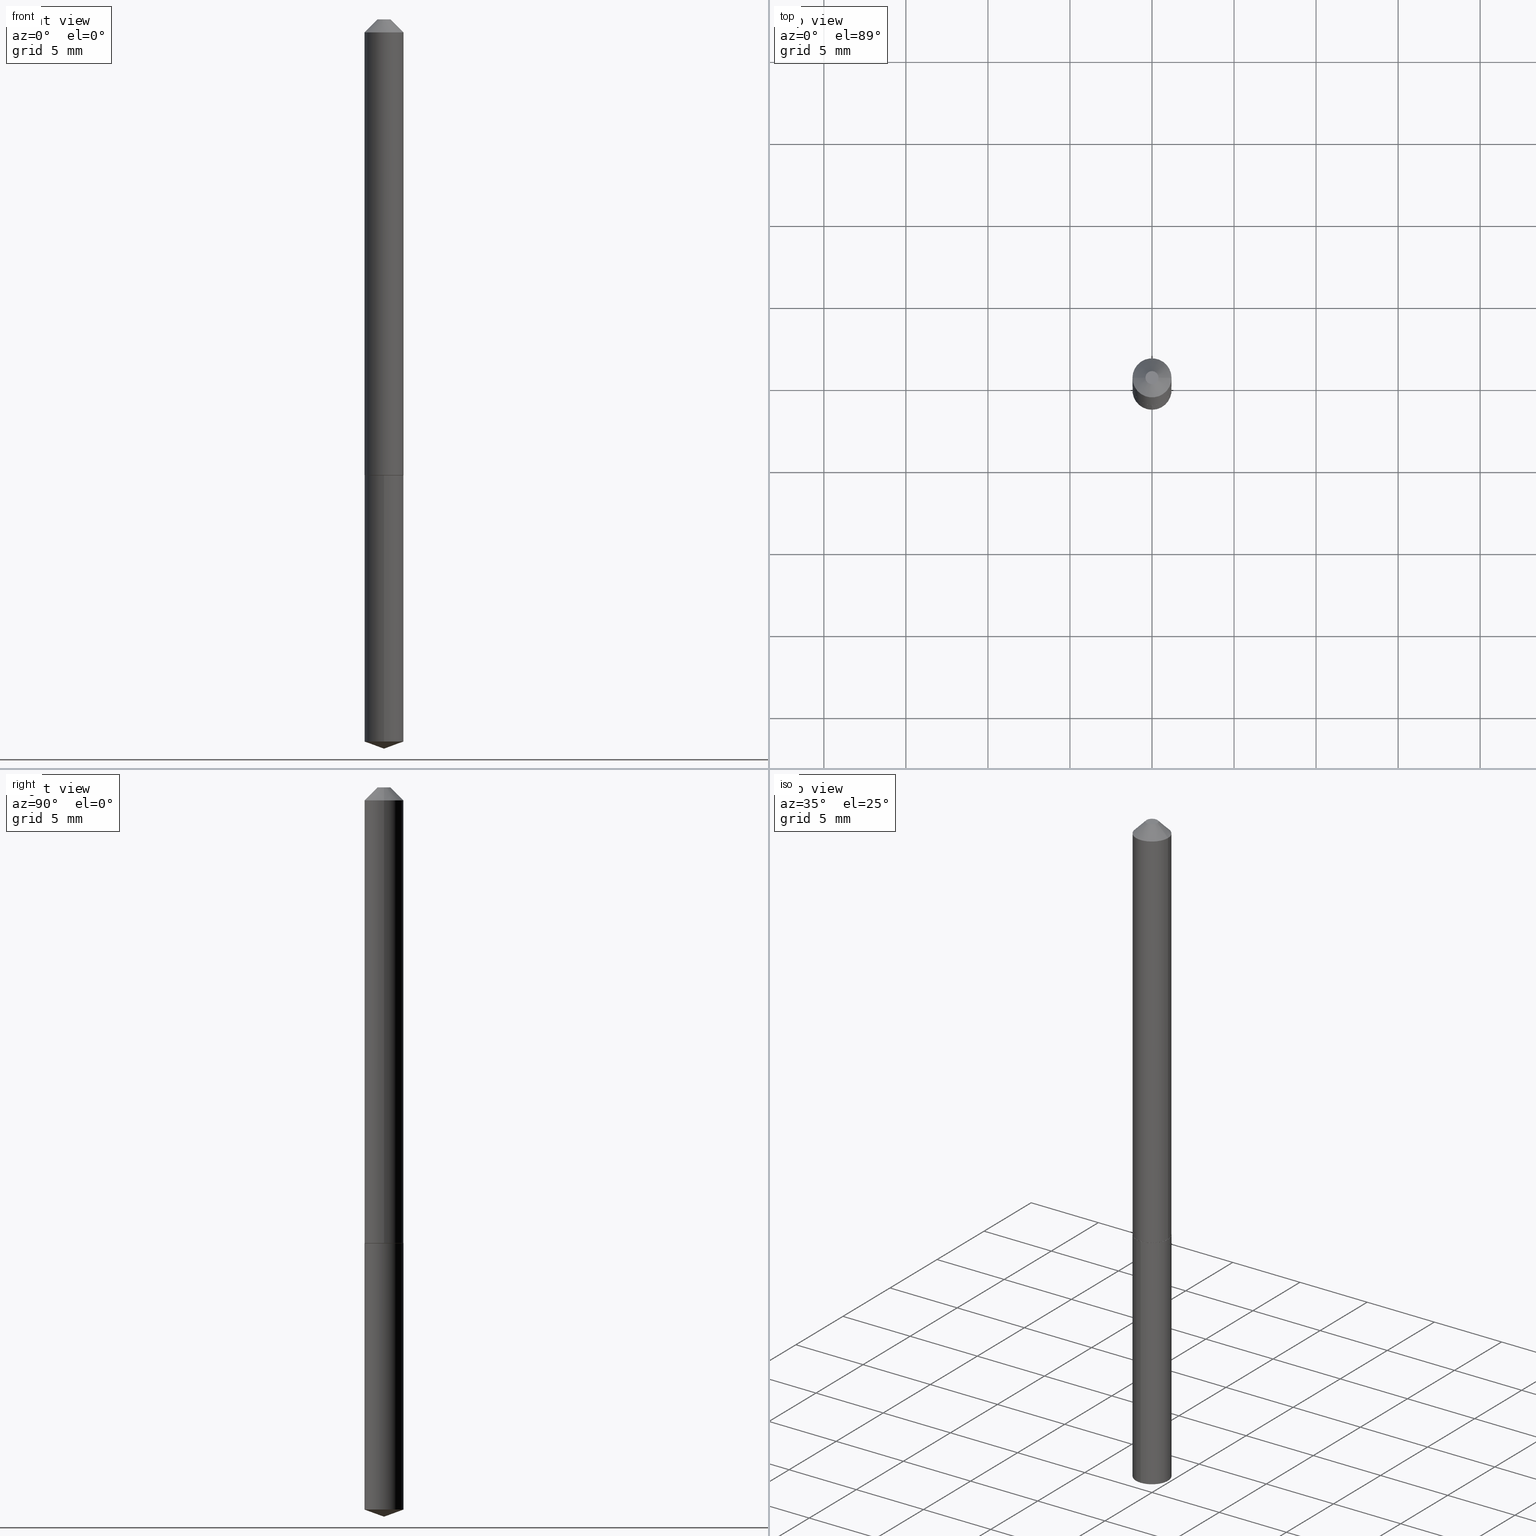
[diagram: canonical four-view strip — front | top / right | iso, engineering-drawing reading convention]
A machine part, canonical four-view strip (front | top / right | iso — engineering-drawing reading convention). The complete STEP part file that produces these views, byte-faithful:
ISO-10303-21;
HEADER;
FILE_DESCRIPTION (( 'STEP AP203' ),
    '1' );
FILE_NAME ('56106.STEP',
    '2024-04-22T20:13:39',
    ( '' ),
    ( '' ),
    'SwSTEP 2.0',
    'SolidWorks 2023',
    '' );
FILE_SCHEMA (( 'CONFIG_CONTROL_DESIGN' ));
ENDSEC;

DATA;
#1 = DIRECTION ( 'NONE',  ( 1.000000000000000000, -6.982962677686267499E-15, 0.000000000000000000 ) ) ;
#2 = AXIS2_PLACEMENT_3D ( 'NONE', #245, #93, #1 ) ;
#3 = EDGE_LOOP ( 'NONE', ( #22, #197, #390 ) ) ;
#4 = DIRECTION ( 'NONE',  ( -2.445468806185136597E-29, 3.491481338843145583E-15, 1.000000000000000000 ) ) ;
#5 = ORIENTED_EDGE ( 'NONE', *, *, #24, .T. ) ;
#6 = DIRECTION ( 'NONE',  ( 1.000000000000000000, 0.000000000000000000, 0.000000000000000000 ) ) ;
#7 = DIRECTION ( 'NONE',  ( 1.000000000000000000, -6.982962677686267499E-15, 4.876176775795936914E-29 ) ) ;
#8 = CARTESIAN_POINT ( 'NONE',  ( -2.350945903538821480E-47, 3.356527685029124736E-33, 9.613477373306724115E-19 ) ) ;
#9 = VECTOR ( 'NONE', #230, 39.37007874015748143 ) ;
#10 = CARTESIAN_POINT ( 'NONE',  ( 2.674853780205301984E-29, -3.818982288426632668E-15, -1.093799999999999883 ) ) ;
#11 = DIRECTION ( 'NONE',  ( -2.445236221717510634E-29, 3.491814413038671923E-15, 1.000000000000000000 ) ) ;
#12 = ORIENTED_EDGE ( 'NONE', *, *, #256, .F. ) ;
#13 = LINE ( 'NONE', #43, #9 ) ;
#14 = CARTESIAN_POINT ( 'NONE',  ( 2.673631045802209744E-29, -3.817236547757210376E-15, -1.093299999999999939 ) ) ;
#15 = LINE ( 'NONE', #261, #304 ) ;
#16 = DIRECTION ( 'NONE',  ( 1.000000000000000000, -6.982962677686267499E-15, 0.000000000000000000 ) ) ;
#17 = ORGANIZATION ( 'UNSPECIFIED', 'UNSPECIFIED', '' ) ;
#18 = COORDINATED_UNIVERSAL_TIME_OFFSET ( 5, 0, .BEHIND. ) ;
#19 = ADVANCED_FACE ( 'NONE', ( #69 ), #171, .T. ) ;
#20 = CC_DESIGN_SECURITY_CLASSIFICATION ( #75, ( #23 ) ) ;
#21 = APPROVAL_STATUS ( 'not_yet_approved' ) ;
#22 = ORIENTED_EDGE ( 'NONE', *, *, #100, .F. ) ;
#23 = PRODUCT_DEFINITION_FORMATION_WITH_SPECIFIED_SOURCE ( 'ANY', '', #357, .NOT_KNOWN. ) ;
#24 = EDGE_CURVE ( 'NONE', #64, #283, #97, .T. ) ;
#25 = ORIENTED_EDGE ( 'NONE', *, *, #388, .F. ) ;
#26 = PLANE ( 'NONE',  #246 ) ;
#27 = DIRECTION ( 'NONE',  ( 1.000000000000000000, -6.982962677686266711E-15, 4.876023076384157802E-29 ) ) ;
#28 = ORIENTED_EDGE ( 'NONE', *, *, #54, .F. ) ;
#29 = ORIENTED_EDGE ( 'NONE', *, *, #242, .T. ) ;
#30 = EDGE_CURVE ( 'NONE', #64, #57, #346, .T. ) ;
#31 = CARTESIAN_POINT ( 'NONE',  ( 2.673631045802209744E-29, -3.817236547757210376E-15, -1.093299999999999939 ) ) ;
#32 = AXIS2_PLACEMENT_3D ( 'NONE', #159, #284, #6 ) ;
#33 = ORIENTED_EDGE ( 'NONE', *, *, #39, .T. ) ;
#34 = CARTESIAN_POINT ( 'NONE',  ( -0.04690000000000006664, 3.332445430714874606E-16, -2.306980557329554105E-30 ) ) ;
#35 = APPROVAL ( #342, 'UNSPECIFIED' ) ;
#36 = LINE ( 'NONE', #285, #295 ) ;
#37 = DIRECTION ( 'NONE',  ( -6.982962677686266711E-15, -1.000000000000000000, 5.824835807386488998E-15 ) ) ;
#38 = FACE_OUTER_BOUND ( 'NONE', #189, .T. ) ;
#39 = EDGE_CURVE ( 'NONE', #366, #360, #216, .T. ) ;
#40 = CARTESIAN_POINT ( 'NONE',  ( 2.674853780205301984E-29, -3.818982288426632668E-15, -1.093799999999999883 ) ) ;
#41 = LOCAL_TIME ( 16, 13, 39.00000000000000000, #18 ) ;
#42 = CYLINDRICAL_SURFACE ( 'NONE', #273, 0.04689999999999999725 ) ;
#43 = CARTESIAN_POINT ( 'NONE',  ( -0.04690000000000001112, 2.183921577446369497E-16, -0.03125000000000020123 ) ) ;
#44 = ORIENTED_EDGE ( 'NONE', *, *, #30, .T. ) ;
#45 = DIRECTION ( 'NONE',  ( -2.445236221717510634E-29, 3.491814413038671923E-15, 1.000000000000000000 ) ) ;
#46 = DIRECTION ( 'NONE',  ( -0.7071067811863663843, 7.493145998869699406E-15, 0.7071067811867286501 ) ) ;
#47 = ORIENTED_EDGE ( 'NONE', *, *, #242, .F. ) ;
#48 = PERSON_AND_ORGANIZATION_ROLE ( 'creator' ) ;
#49 = AXIS2_PLACEMENT_3D ( 'NONE', #356, #365, #195 ) ;
#50 = CONICAL_SURFACE ( 'NONE', #2, 0.04690000000000013602, 0.7853981633971921505 ) ;
#51 = CIRCLE ( 'NONE', #353, 0.04690000000000013602 ) ;
#52 = DIRECTION ( 'NONE',  ( -2.445236221717510634E-29, 3.491814413038671923E-15, 1.000000000000000000 ) ) ;
#53 = APPROVAL_ROLE ( '' ) ;
#54 = EDGE_CURVE ( 'NONE', #181, #366, #36, .T. ) ;
#55 = EDGE_CURVE ( 'NONE', #260, #118, #265, .T. ) ;
#56 = ORIENTED_EDGE ( 'NONE', *, *, #212, .F. ) ;
#57 = VERTEX_POINT ( 'NONE', #165 ) ;
#58 = CIRCLE ( 'NONE', #323, 0.04689999999999999725 ) ;
#59 = ORIENTED_EDGE ( 'NONE', *, *, #352, .T. ) ;
#60 = VERTEX_POINT ( 'NONE', #294 ) ;
#61 = ADVANCED_FACE ( 'NONE', ( #80 ), #176, .T. ) ;
#62 = CARTESIAN_POINT ( 'NONE',  ( 4.237677107795006876E-29, -6.050704921946997254E-15, -1.732929796012915302 ) ) ;
#63 = CARTESIAN_POINT ( 'NONE',  ( -3.275009495834435504E-16, -0.04690000000000605490, -1.732929796012915080 ) ) ;
#64 = VERTEX_POINT ( 'NONE', #202 ) ;
#65 = DIRECTION ( 'NONE',  ( -2.445236221717510634E-29, 3.491814413038671923E-15, 1.000000000000000000 ) ) ;
#66 = APPROVAL ( #21, 'UNSPECIFIED' ) ;
#67 = DIRECTION ( 'NONE',  ( -2.445236221717510634E-29, 3.491814413038671923E-15, 1.000000000000000000 ) ) ;
#68 = VECTOR ( 'NONE', #345, 39.37007874015748854 ) ;
#69 = FACE_OUTER_BOUND ( 'NONE', #96, .T. ) ;
#70 = DATE_AND_TIME ( #101, #98 ) ;
#71 = CARTESIAN_POINT ( 'NONE',  ( 3.332445430715136903E-16, 0.04689999999999618085, -1.093800000000000106 ) ) ;
#72 = CARTESIAN_POINT ( 'NONE',  ( -0.04690000000000013602, -3.483992004685722619E-15, -1.093299999999999939 ) ) ;
#73 = CARTESIAN_POINT ( 'NONE',  ( 0.04690000000000001112, -4.308661479343338886E-16, -0.03125000000000020123 ) ) ;
#74 = CARTESIAN_POINT ( 'NONE',  ( 2.673631045802209744E-29, -3.817236547757210376E-15, -1.093299999999999939 ) ) ;
#75 = SECURITY_CLASSIFICATION ( '', '', #172 ) ;
#76 = DIRECTION ( 'NONE',  ( -6.982962677686266711E-15, -1.000000000000000000, 3.475157955500679982E-15 ) ) ;
#77 = DIRECTION ( 'NONE',  ( -2.445468806185136597E-29, 3.491481338843145583E-15, 1.000000000000000000 ) ) ;
#78 = ADVANCED_FACE ( 'NONE', ( #139 ), #42, .T. ) ;
#79 = PERSON_AND_ORGANIZATION ( #185, #17 ) ;
#80 = FACE_OUTER_BOUND ( 'NONE', #244, .T. ) ;
#81 = CIRCLE ( 'NONE', #49, 0.04690000000000001112 ) ;
#82 = LOCAL_TIME ( 16, 13, 39.00000000000000000, #382 ) ;
#83 = PERSON_AND_ORGANIZATION ( #185, #17 ) ;
#84 = DATE_AND_TIME ( #325, #82 ) ;
#85 = CIRCLE ( 'NONE', #125, 0.04640000000000008701 ) ;
#86 = AXIS2_PLACEMENT_3D ( 'NONE', #148, #218, #361 ) ;
#87 = PRODUCT_RELATED_PRODUCT_CATEGORY ( 'detail', '', ( #357 ) ) ;
#88 = DIRECTION ( 'NONE',  ( -2.445468806185136597E-29, 3.491481338843145583E-15, 1.000000000000000000 ) ) ;
#89 = EDGE_LOOP ( 'NONE', ( #362, #44, #29, #308 ) ) ;
#90 = ORIENTED_EDGE ( 'NONE', *, *, #109, .F. ) ;
#91 = AXIS2_PLACEMENT_3D ( 'NONE', #272, #116, #243 ) ;
#92 = AXIS2_PLACEMENT_3D ( 'NONE', #321, #347, #76 ) ;
#93 = DIRECTION ( 'NONE',  ( -2.445468806185136597E-29, 3.491481338843145583E-15, 1.000000000000000000 ) ) ;
#94 = ORIENTED_EDGE ( 'NONE', *, *, #121, .T. ) ;
#95 = DIRECTION ( 'NONE',  ( 1.000000000000000000, -6.982962677686267499E-15, 4.876176775795936914E-29 ) ) ;
#96 = EDGE_LOOP ( 'NONE', ( #33, #350, #47, #154 ) ) ;
#97 = CIRCLE ( 'NONE', #191, 0.01565000000000000072 ) ;
#98 = LOCAL_TIME ( 16, 13, 39.00000000000000000, #104 ) ;
#99 = CARTESIAN_POINT ( 'NONE',  ( 0.04640000000000008701, -4.142991756671276352E-15, -1.093800000000000328 ) ) ;
#100 = EDGE_CURVE ( 'NONE', #158, #260, #15, .T. ) ;
#101 = CALENDAR_DATE ( 2024, 22, 4 ) ;
#102 = DIRECTION ( 'NONE',  ( 2.445468806185136597E-29, -3.491481338843145583E-15, -1.000000000000000000 ) ) ;
#103 = EDGE_LOOP ( 'NONE', ( #223, #229, #149, #314 ) ) ;
#104 = COORDINATED_UNIVERSAL_TIME_OFFSET ( 5, 0, .BEHIND. ) ;
#105 = EDGE_LOOP ( 'NONE', ( #275, #94 ) ) ;
#106 = CARTESIAN_POINT ( 'NONE',  ( 7.642090019328601786E-31, -1.091087918388490144E-16, -0.03125000000000020123 ) ) ;
#107 = ORIENTED_EDGE ( 'NONE', *, *, #30, .F. ) ;
#108 = COORDINATED_UNIVERSAL_TIME_OFFSET ( 5, 0, .BEHIND. ) ;
#109 = EDGE_CURVE ( 'NONE', #181, #337, #85, .T. ) ;
#110 = AXIS2_PLACEMENT_3D ( 'NONE', #315, #247, #252 ) ;
#111 = APPROVAL_PERSON_ORGANIZATION ( #266, #274, #326 ) ;
#112 = DESIGN_CONTEXT ( 'detailed design', #132, 'design' ) ;
#113 = DIRECTION ( 'NONE',  ( -2.445468806185136597E-29, 3.491481338843145583E-15, 1.000000000000000000 ) ) ;
#114 = PERSON_AND_ORGANIZATION_ROLE ( 'design_supplier' ) ;
#115 = EDGE_CURVE ( 'NONE', #337, #181, #206, .T. ) ;
#116 = DIRECTION ( 'NONE',  ( -2.445236221717510634E-29, 3.491814413038671923E-15, 1.000000000000000000 ) ) ;
#117 = APPROVAL_PERSON_ORGANIZATION ( #205, #66, #53 ) ;
#118 = VERTEX_POINT ( 'NONE', #180 ) ;
#119 = DIRECTION ( 'NONE',  ( -2.445468806185136597E-29, 3.491481338843145583E-15, 1.000000000000000000 ) ) ;
#120 = EDGE_LOOP ( 'NONE', ( #276, #385, #226, #364 ) ) ;
#121 = EDGE_CURVE ( 'NONE', #60, #118, #348, .T. ) ;
#122 = FACE_OUTER_BOUND ( 'NONE', #374, .T. ) ;
#123 = ORIENTED_EDGE ( 'NONE', *, *, #39, .F. ) ;
#124 = DIMENSIONAL_EXPONENTS ( 1.000000000000000000, 0.000000000000000000, 0.000000000000000000, 0.000000000000000000, 0.000000000000000000, 0.000000000000000000, 0.000000000000000000 ) ;
#125 = AXIS2_PLACEMENT_3D ( 'NONE', #354, #113, #145 ) ;
#126 = PLANE ( 'NONE',  #233 ) ;
#127 = ORIENTED_EDGE ( 'NONE', *, *, #320, .F. ) ;
#128 = FACE_OUTER_BOUND ( 'NONE', #250, .T. ) ;
#129 = EDGE_CURVE ( 'NONE', #251, #57, #81, .T. ) ;
#130 = APPLICATION_PROTOCOL_DEFINITION ( 'international standard', 'config_control_design', 1994, #387 ) ;
#131 = CYLINDRICAL_SURFACE ( 'NONE', #280, 0.04690000000000006664 ) ;
#132 = APPLICATION_CONTEXT ( 'configuration controlled 3d designs of mechanical parts and assemblies' ) ;
#133 = CARTESIAN_POINT ( 'NONE',  ( 0.04690000000000013602, -4.144737497340697067E-15, -1.093299999999999939 ) ) ;
#134 = AXIS2_PLACEMENT_3D ( 'NONE', #106, #102, #293 ) ;
#135 =( CONVERSION_BASED_UNIT ( 'INCH', #369 ) LENGTH_UNIT ( ) NAMED_UNIT ( #124 ) );
#136 = ADVANCED_FACE ( 'NONE', ( #186 ), #131, .T. ) ;
#137 = ORIENTED_EDGE ( 'NONE', *, *, #143, .T. ) ;
#138 = DIRECTION ( 'NONE',  ( -2.445236221717510634E-29, 3.491814413038671923E-15, 1.000000000000000000 ) ) ;
#139 = FACE_OUTER_BOUND ( 'NONE', #151, .T. ) ;
#140 = DIRECTION ( 'NONE',  ( 1.000000000000000000, -6.982962677686267499E-15, 0.000000000000000000 ) ) ;
#141 = CC_DESIGN_DATE_AND_TIME_ASSIGNMENT ( #146, #299, ( #75 ) ) ;
#142 = CIRCLE ( 'NONE', #156, 0.04690000000000001112 ) ;
#143 = EDGE_CURVE ( 'NONE', #260, #167, #58, .T. ) ;
#144 = PERSON_AND_ORGANIZATION ( #185, #17 ) ;
#145 = DIRECTION ( 'NONE',  ( 1.000000000000000000, -6.982962677686263555E-15, 0.000000000000000000 ) ) ;
#146 = DATE_AND_TIME ( #376, #41 ) ;
#147 = CALENDAR_DATE ( 2024, 22, 4 ) ;
#148 = CARTESIAN_POINT ( 'NONE',  ( 7.642090019328601786E-31, -1.091087918388490144E-16, -0.03125000000000020123 ) ) ;
#149 = ORIENTED_EDGE ( 'NONE', *, *, #268, .T. ) ;
#150 = DIRECTION ( 'NONE',  ( 1.000000000000000000, -6.982962677686267499E-15, 0.000000000000000000 ) ) ;
#151 = EDGE_LOOP ( 'NONE', ( #137, #184, #25, #278 ) ) ;
#152 = CARTESIAN_POINT ( 'NONE',  ( -1.175472951769410740E-47, 1.678263842514562368E-33, 4.806738686653362058E-19 ) ) ;
#153 = LINE ( 'NONE', #389, #207 ) ;
#154 = ORIENTED_EDGE ( 'NONE', *, *, #268, .F. ) ;
#155 = ORIENTED_EDGE ( 'NONE', *, *, #313, .T. ) ;
#156 = AXIS2_PLACEMENT_3D ( 'NONE', #303, #88, #220 ) ;
#157 = DIRECTION ( 'NONE',  ( -2.445468806185136597E-29, 3.491481338843145583E-15, 1.000000000000000000 ) ) ;
#158 = VERTEX_POINT ( 'NONE', #217 ) ;
#159 = CARTESIAN_POINT ( 'NONE',  ( 0.000000000000000000, 0.000000000000000000, 0.000000000000000000 ) ) ;
#160 = ADVANCED_FACE ( 'NONE', ( #335 ), #311, .F. ) ;
#161 = CARTESIAN_POINT ( 'NONE',  ( 3.332445430715293689E-16, 0.04689999999999395347, -1.732929796012915524 ) ) ;
#162 = CARTESIAN_POINT ( 'NONE',  ( 4.279676651378052171E-29, -6.109946589707541295E-15, -1.750000000000000000 ) ) ;
#163 = VECTOR ( 'NONE', #306, 39.37007874015748143 ) ;
#164 = LINE ( 'NONE', #199, #380 ) ;
#165 = CARTESIAN_POINT ( 'NONE',  ( 0.04690000000000001112, -4.366097414223349538E-16, -0.03125000000000020123 ) ) ;
#166 = MECHANICAL_CONTEXT ( 'NONE', #387, 'mechanical' ) ;
#167 = VERTEX_POINT ( 'NONE', #161 ) ;
#168 = MANIFOLD_SOLID_BREP ( 'Body-Move/Copy2[1]', #236 ) ;
#169 = DIRECTION ( 'NONE',  ( -2.445236221717510634E-29, 3.491814413038671923E-15, 1.000000000000000000 ) ) ;
#170 = DIRECTION ( 'NONE',  ( -2.445236221717510634E-29, 3.491814413038671923E-15, 1.000000000000000000 ) ) ;
#171 = CYLINDRICAL_SURFACE ( 'NONE', #269, 0.04690000000000006664 ) ;
#172 = SECURITY_CLASSIFICATION_LEVEL ( 'unclassified' ) ;
#173 = LOCAL_TIME ( 16, 13, 39.00000000000000000, #235 ) ;
#174 = DIRECTION ( 'NONE',  ( -6.982962677686266711E-15, -1.000000000000000000, 2.912417903693244499E-15 ) ) ;
#175 = PERSON_AND_ORGANIZATION_ROLE ( 'classification_officer' ) ;
#176 = CYLINDRICAL_SURFACE ( 'NONE', #339, 0.04689999999999999725 ) ;
#177 = PERSON_AND_ORGANIZATION ( #185, #17 ) ;
#178 = APPROVAL_DATE_TIME ( #84, #66 ) ;
#179 = AXIS2_PLACEMENT_3D ( 'NONE', #307, #4, #27 ) ;
#180 = CARTESIAN_POINT ( 'NONE',  ( -3.275009495834591304E-16, -0.04690000000000381364, -1.093799999999999883 ) ) ;
#181 = VERTEX_POINT ( 'NONE', #99 ) ;
#182 = ORIENTED_EDGE ( 'NONE', *, *, #129, .T. ) ;
#183 = CC_DESIGN_PERSON_AND_ORGANIZATION_ASSIGNMENT ( #177, #175, ( #75 ) ) ;
#184 = ORIENTED_EDGE ( 'NONE', *, *, #212, .T. ) ;
#185 = PERSON ( 'UNSPECIFIED', 'UNSPECIFIED', 'UNSPECIFIED', ('UNSPECIFIED'), ('UNSPECIFIED'), ('UNSPECIFIED') ) ;
#186 = FACE_OUTER_BOUND ( 'NONE', #103, .T. ) ;
#187 = ORIENTED_EDGE ( 'NONE', *, *, #55, .T. ) ;
#188 = CARTESIAN_POINT ( 'NONE',  ( -0.01565000000000000419, 1.638377618252135333E-16, 9.613477373297175355E-19 ) ) ;
#189 = EDGE_LOOP ( 'NONE', ( #107, #12, #59, #182 ) ) ;
#190 = CC_DESIGN_PERSON_AND_ORGANIZATION_ASSIGNMENT ( #318, #225, ( #357 ) ) ;
#191 = AXIS2_PLACEMENT_3D ( 'NONE', #8, #194, #234 ) ;
#192 = AXIS2_PLACEMENT_3D ( 'NONE', #40, #11, #289 ) ;
#193 =( NAMED_UNIT ( * ) SI_UNIT ( $, .STERADIAN. ) SOLID_ANGLE_UNIT ( ) );
#194 = DIRECTION ( 'NONE',  ( -2.445468806185136597E-29, 3.491481338843145583E-15, 1.000000000000000000 ) ) ;
#195 = DIRECTION ( 'NONE',  ( 1.000000000000000000, -6.982962677686265922E-15, 0.000000000000000000 ) ) ;
#196 =( LENGTH_UNIT ( ) NAMED_UNIT ( * ) SI_UNIT ( $, .METRE. ) );
#197 = ORIENTED_EDGE ( 'NONE', *, *, #320, .T. ) ;
#198 = FACE_OUTER_BOUND ( 'NONE', #120, .T. ) ;
#199 = CARTESIAN_POINT ( 'NONE',  ( -0.04690000000000013602, -3.483992004685722619E-15, -1.093299999999999939 ) ) ;
#200 = EDGE_CURVE ( 'NONE', #360, #251, #344, .T. ) ;
#201 = DIRECTION ( 'NONE',  ( 0.7071067811865453523, -7.319954787623248157E-15, -0.7071067811865496822 ) ) ;
#202 = CARTESIAN_POINT ( 'NONE',  ( 0.01565000000000000419, -2.691164707997292069E-16, 9.613477373319947550E-19 ) ) ;
#203 = CARTESIAN_POINT ( 'NONE',  ( -0.04640000000000008701, -3.486641231859834215E-15, -1.093800000000000328 ) ) ;
#204 = DATE_AND_TIME ( #322, #173 ) ;
#205 = PERSON_AND_ORGANIZATION ( #185, #17 ) ;
#206 = CIRCLE ( 'NONE', #372, 0.04640000000000008701 ) ;
#207 = VECTOR ( 'NONE', #277, 39.37007874015748143 ) ;
#208 = ADVANCED_BREP_SHAPE_REPRESENTATION ( '56106', ( #168, #300, #32 ), #327 ) ;
#209 = CARTESIAN_POINT ( 'NONE',  ( 2.674853780205303105E-29, -3.818982288426633457E-15, -1.093800000000000328 ) ) ;
#210 = DATE_AND_TIME ( #147, #297 ) ;
#211 = ADVANCED_FACE ( 'NONE', ( #281 ), #26, .F. ) ;
#212 = EDGE_CURVE ( 'NONE', #167, #60, #227, .T. ) ;
#213 = ORIENTED_EDGE ( 'NONE', *, *, #121, .F. ) ;
#214 = DIRECTION ( 'NONE',  ( -6.561838499445211896E-15, -0.9396926207859086499, 0.3420201433256677137 ) ) ;
#215 = ORIENTED_EDGE ( 'NONE', *, *, #100, .T. ) ;
#216 = CIRCLE ( 'NONE', #232, 0.04690000000000013602 ) ;
#217 = CARTESIAN_POINT ( 'NONE',  ( 4.279163388005642908E-29, -6.110675222817674879E-15, -1.750000000000000000 ) ) ;
#218 = DIRECTION ( 'NONE',  ( 2.445468806185136597E-29, -3.491481338843145583E-15, -1.000000000000000000 ) ) ;
#219 = DIRECTION ( 'NONE',  ( -2.445468806185136597E-29, 3.491481338843145583E-15, 1.000000000000000000 ) ) ;
#220 = DIRECTION ( 'NONE',  ( 1.000000000000000000, -6.982962677686265922E-15, 0.000000000000000000 ) ) ;
#221 = EDGE_LOOP ( 'NONE', ( #127, #215, #334 ) ) ;
#222 = CARTESIAN_POINT ( 'NONE',  ( -0.04690000000000001112, -1.629928126726541587E-15, -0.03125000000000020123 ) ) ;
#223 = ORIENTED_EDGE ( 'NONE', *, *, #200, .F. ) ;
#224 = CONICAL_SURFACE ( 'NONE', #373, 108.1684023407347155, 1.221730476396035270 ) ;
#225 = PERSON_AND_ORGANIZATION_ROLE ( 'design_owner' ) ;
#226 = ORIENTED_EDGE ( 'NONE', *, *, #54, .T. ) ;
#227 = LINE ( 'NONE', #71, #255 ) ;
#228 = APPROVAL_DATE_TIME ( #70, #35 ) ;
#229 = ORIENTED_EDGE ( 'NONE', *, *, #309, .T. ) ;
#230 = DIRECTION ( 'NONE',  ( -0.7071067811865453523, 2.468850131082234184E-15, -0.7071067811865496822 ) ) ;
#231 = CC_DESIGN_PERSON_AND_ORGANIZATION_ASSIGNMENT ( #79, #237, ( #23 ) ) ;
#232 = AXIS2_PLACEMENT_3D ( 'NONE', #14, #77, #16 ) ;
#233 = AXIS2_PLACEMENT_3D ( 'NONE', #248, #363, #310 ) ;
#234 = DIRECTION ( 'NONE',  ( 1.000000000000000000, -6.982962677686266711E-15, 4.876023076384157802E-29 ) ) ;
#235 = COORDINATED_UNIVERSAL_TIME_OFFSET ( 5, 0, .BEHIND. ) ;
#236 = CLOSED_SHELL ( 'NONE', ( #78, #249, #375, #61, #160 ) ) ;
#237 = PERSON_AND_ORGANIZATION_ROLE ( 'creator' ) ;
#238 = ADVANCED_FACE ( 'NONE', ( #198 ), #367, .T. ) ;
#239 = APPROVAL_STATUS ( 'not_yet_approved' ) ;
#240 = VECTOR ( 'NONE', #201, 39.37007874015748143 ) ;
#241 = APPROVAL_PERSON_ORGANIZATION ( #259, #35, #371 ) ;
#242 = EDGE_CURVE ( 'NONE', #57, #251, #142, .T. ) ;
#243 = DIRECTION ( 'NONE',  ( -6.982962677686266711E-15, -1.000000000000000000, 2.912417903693244499E-15 ) ) ;
#244 = EDGE_LOOP ( 'NONE', ( #56, #155, #187, #213 ) ) ;
#245 = CARTESIAN_POINT ( 'NONE',  ( 2.673631045802209744E-29, -3.817236547757210376E-15, -1.093299999999999939 ) ) ;
#246 = AXIS2_PLACEMENT_3D ( 'NONE', #152, #267, #351 ) ;
#247 = DIRECTION ( 'NONE',  ( 2.445236221717510073E-29, -3.491814413038671923E-15, -1.000000000000000000 ) ) ;
#248 = CARTESIAN_POINT ( 'NONE',  ( 4.263884563954778888E-30, -7.038912606820989308E-15, -1.093800000000000106 ) ) ;
#249 = ADVANCED_FACE ( 'NONE', ( #332 ), #224, .T. ) ;
#250 = EDGE_LOOP ( 'NONE', ( #90, #343 ) ) ;
#251 = VERTEX_POINT ( 'NONE', #222 ) ;
#252 = DIRECTION ( 'NONE',  ( 6.982962677686265922E-15, 1.000000000000000000, -3.491814413038671923E-15 ) ) ;
#253 = ADVANCED_FACE ( 'NONE', ( #302 ), #305, .T. ) ;
#254 = VECTOR ( 'NONE', #52, 39.37007874015748143 ) ;
#255 = VECTOR ( 'NONE', #138, 39.37007874015748143 ) ;
#256 = EDGE_CURVE ( 'NONE', #283, #64, #312, .T. ) ;
#257 = CARTESIAN_POINT ( 'NONE',  ( -3.275009495834591304E-16, -0.04690000000000381364, -1.093799999999999883 ) ) ;
#258 = FACE_OUTER_BOUND ( 'NONE', #221, .T. ) ;
#259 = PERSON_AND_ORGANIZATION ( #185, #17 ) ;
#260 = VERTEX_POINT ( 'NONE', #63 ) ;
#261 = CARTESIAN_POINT ( 'NONE',  ( 4.279163388005642908E-29, -6.110675222817674879E-15, -1.750000000000000000 ) ) ;
#262 = DIRECTION ( 'NONE',  ( -6.982962677686266711E-15, -1.000000000000000000, 5.824835807386488998E-15 ) ) ;
#263 = AXIS2_PLACEMENT_3D ( 'NONE', #74, #119, #150 ) ;
#264 = CC_DESIGN_PERSON_AND_ORGANIZATION_ASSIGNMENT ( #144, #114, ( #23 ) ) ;
#265 = LINE ( 'NONE', #257, #254 ) ;
#266 = PERSON_AND_ORGANIZATION ( #185, #17 ) ;
#267 = DIRECTION ( 'NONE',  ( 2.438088387897960049E-29, -3.491481338843145188E-15, -1.000000000000000000 ) ) ;
#268 = EDGE_CURVE ( 'NONE', #366, #57, #153, .T. ) ;
#269 = AXIS2_PLACEMENT_3D ( 'NONE', #286, #291, #7 ) ;
#270 = AXIS2_PLACEMENT_3D ( 'NONE', #370, #170, #262 ) ;
#271 = DATE_TIME_ROLE ( 'creation_date' ) ;
#272 = CARTESIAN_POINT ( 'NONE',  ( 2.674853780205301984E-29, -3.818982288426632668E-15, -1.093799999999999883 ) ) ;
#273 = AXIS2_PLACEMENT_3D ( 'NONE', #298, #169, #292 ) ;
#274 = APPROVAL ( #239, 'UNSPECIFIED' ) ;
#275 = ORIENTED_EDGE ( 'NONE', *, *, #388, .T. ) ;
#276 = ORIENTED_EDGE ( 'NONE', *, *, #381, .F. ) ;
#277 = DIRECTION ( 'NONE',  ( -2.445468806185136877E-29, 3.491481338843145188E-15, 1.000000000000000000 ) ) ;
#278 = ORIENTED_EDGE ( 'NONE', *, *, #55, .F. ) ;
#279 = ADVANCED_FACE ( 'NONE', ( #122 ), #50, .T. ) ;
#280 = AXIS2_PLACEMENT_3D ( 'NONE', #368, #219, #95 ) ;
#281 = FACE_OUTER_BOUND ( 'NONE', #329, .T. ) ;
#282 = CONICAL_SURFACE ( 'NONE', #92, 108.1684023407347155, 1.221730476396035270 ) ;
#283 = VERTEX_POINT ( 'NONE', #188 ) ;
#284 = DIRECTION ( 'NONE',  ( 0.000000000000000000, 0.000000000000000000, 1.000000000000000000 ) ) ;
#285 = CARTESIAN_POINT ( 'NONE',  ( 0.04690000000000013602, -4.144737497340697067E-15, -1.093299999999999939 ) ) ;
#286 = CARTESIAN_POINT ( 'NONE',  ( 0.000000000000000000, 0.000000000000000000, 0.000000000000000000 ) ) ;
#287 = ADVANCED_FACE ( 'NONE', ( #128 ), #126, .F. ) ;
#288 = CC_DESIGN_APPROVAL ( #66, ( #23 ) ) ;
#289 = DIRECTION ( 'NONE',  ( -6.982962677686266711E-15, -1.000000000000000000, 2.912417903693244499E-15 ) ) ;
#290 = APPLICATION_PROTOCOL_DEFINITION ( 'international standard', 'config_control_design', 1994, #132 ) ;
#291 = DIRECTION ( 'NONE',  ( -2.445468806185136597E-29, 3.491481338843145583E-15, 1.000000000000000000 ) ) ;
#292 = DIRECTION ( 'NONE',  ( -6.982962677686266711E-15, -1.000000000000000000, 2.912417903693244499E-15 ) ) ;
#293 = DIRECTION ( 'NONE',  ( -1.000000000000000000, 6.982962677686265922E-15, 0.000000000000000000 ) ) ;
#294 = CARTESIAN_POINT ( 'NONE',  ( 3.332445430715294675E-16, 0.04689999999999618085, -1.093800000000000106 ) ) ;
#295 = VECTOR ( 'NONE', #330, 39.37007874015748143 ) ;
#296 = SHAPE_DEFINITION_REPRESENTATION ( #328, #208 ) ;
#297 = LOCAL_TIME ( 16, 13, 39.00000000000000000, #108 ) ;
#298 = CARTESIAN_POINT ( 'NONE',  ( 2.674853780205301984E-29, -3.818982288426632668E-15, -1.093799999999999883 ) ) ;
#299 = DATE_TIME_ROLE ( 'classification_date' ) ;
#300 = MANIFOLD_SOLID_BREP ( 'Body-Move/Copy2[2]', #383 ) ;
#301 = CC_DESIGN_PERSON_AND_ORGANIZATION_ASSIGNMENT ( #83, #48, ( #341 ) ) ;
#302 = FACE_OUTER_BOUND ( 'NONE', #89, .T. ) ;
#303 = CARTESIAN_POINT ( 'NONE',  ( 7.642090019328601786E-31, -1.091087918388490144E-16, -0.03125000000000020123 ) ) ;
#304 = VECTOR ( 'NONE', #214, 39.37007874015748143 ) ;
#305 = CONICAL_SURFACE ( 'NONE', #86, 0.04690000000000001112, 0.7853981633974452814 ) ;
#306 = DIRECTION ( 'NONE',  ( -2.445468806185136877E-29, 3.491481338843145188E-15, 1.000000000000000000 ) ) ;
#307 = CARTESIAN_POINT ( 'NONE',  ( -2.350945903538821480E-47, 3.356527685029124736E-33, 9.613477373306724115E-19 ) ) ;
#308 = ORIENTED_EDGE ( 'NONE', *, *, #352, .F. ) ;
#309 = EDGE_CURVE ( 'NONE', #360, #366, #51, .T. ) ;
#310 = DIRECTION ( 'NONE',  ( 1.000000000000000000, -6.982962677686265922E-15, 4.876176775795935793E-29 ) ) ;
#311 = PLANE ( 'NONE',  #110 ) ;
#312 = CIRCLE ( 'NONE', #179, 0.01565000000000000072 ) ;
#313 = EDGE_CURVE ( 'NONE', #167, #260, #384, .T. ) ;
#314 = ORIENTED_EDGE ( 'NONE', *, *, #129, .F. ) ;
#315 = CARTESIAN_POINT ( 'NONE',  ( 2.674853780205301984E-29, -3.818982288426632668E-15, -1.093799999999999883 ) ) ;
#316 =( NAMED_UNIT ( * ) PLANE_ANGLE_UNIT ( ) SI_UNIT ( $, .RADIAN. ) );
#317 = LINE ( 'NONE', #162, #68 ) ;
#318 = PERSON_AND_ORGANIZATION ( #185, #17 ) ;
#319 = ORIENTED_EDGE ( 'NONE', *, *, #256, .T. ) ;
#320 = EDGE_CURVE ( 'NONE', #158, #167, #317, .T. ) ;
#321 = CARTESIAN_POINT ( 'NONE',  ( -9.198972479840723766E-28, 1.313626974810866797E-13, 37.62007874015748143 ) ) ;
#322 = CALENDAR_DATE ( 2024, 22, 4 ) ;
#323 = AXIS2_PLACEMENT_3D ( 'NONE', #62, #65, #37 ) ;
#324 = CC_DESIGN_APPROVAL ( #35, ( #341 ) ) ;
#325 = CALENDAR_DATE ( 2024, 22, 4 ) ;
#326 = APPROVAL_ROLE ( '' ) ;
#327 =( GEOMETRIC_REPRESENTATION_CONTEXT ( 3 ) GLOBAL_UNCERTAINTY_ASSIGNED_CONTEXT ( ( #331 ) ) GLOBAL_UNIT_ASSIGNED_CONTEXT ( ( #135, #316, #193 ) ) REPRESENTATION_CONTEXT ( 'NONE', 'WORKASPACE' ) );
#328 = PRODUCT_DEFINITION_SHAPE ( 'NONE', 'NONE',  #341 ) ;
#329 = EDGE_LOOP ( 'NONE', ( #319, #5 ) ) ;
#330 = DIRECTION ( 'NONE',  ( 0.7071067811863663843, -2.468850131080359456E-15, 0.7071067811867286501 ) ) ;
#331 = UNCERTAINTY_MEASURE_WITH_UNIT (LENGTH_MEASURE( 1.000000000000000082E-05 ), #135, 'distance_accuracy_value', 'NONE');
#332 = FACE_OUTER_BOUND ( 'NONE', #3, .T. ) ;
#333 = CC_DESIGN_APPROVAL ( #274, ( #75 ) ) ;
#334 = ORIENTED_EDGE ( 'NONE', *, *, #313, .F. ) ;
#335 = FACE_OUTER_BOUND ( 'NONE', #105, .T. ) ;
#336 = CARTESIAN_POINT ( 'NONE',  ( -9.198972479840723766E-28, 1.313626974810866797E-13, 37.62007874015748143 ) ) ;
#337 = VERTEX_POINT ( 'NONE', #203 ) ;
#338 = DIRECTION ( 'NONE',  ( -6.982962677686266711E-15, -1.000000000000000000, 3.475157955500679982E-15 ) ) ;
#339 = AXIS2_PLACEMENT_3D ( 'NONE', #10, #45, #174 ) ;
#340 = CONICAL_SURFACE ( 'NONE', #134, 0.04690000000000001112, 0.7853981633974452814 ) ;
#341 = PRODUCT_DEFINITION ( 'UNKNOWN', '', #23, #112 ) ;
#342 = APPROVAL_STATUS ( 'not_yet_approved' ) ;
#343 = ORIENTED_EDGE ( 'NONE', *, *, #115, .F. ) ;
#344 = LINE ( 'NONE', #34, #163 ) ;
#345 = DIRECTION ( 'NONE',  ( 6.676917655467978384E-15, 0.9396926207859110924, 0.3420201433256611079 ) ) ;
#346 = LINE ( 'NONE', #73, #240 ) ;
#347 = DIRECTION ( 'NONE',  ( -2.445236221717510634E-29, 3.491814413038671923E-15, 1.000000000000000000 ) ) ;
#348 = CIRCLE ( 'NONE', #91, 0.04689999999999999725 ) ;
#349 = CIRCLE ( 'NONE', #192, 0.04689999999999999725 ) ;
#350 = ORIENTED_EDGE ( 'NONE', *, *, #200, .T. ) ;
#351 = DIRECTION ( 'NONE',  ( -1.000000000000000000, 6.982962677686265922E-15, -4.876176775795935793E-29 ) ) ;
#352 = EDGE_CURVE ( 'NONE', #283, #251, #13, .T. ) ;
#353 = AXIS2_PLACEMENT_3D ( 'NONE', #31, #157, #140 ) ;
#354 = CARTESIAN_POINT ( 'NONE',  ( 2.674853780205303105E-29, -3.818982288426633457E-15, -1.093800000000000328 ) ) ;
#355 = DIRECTION ( 'NONE',  ( -2.445468806185136597E-29, 3.491481338843145583E-15, 1.000000000000000000 ) ) ;
#356 = CARTESIAN_POINT ( 'NONE',  ( 7.642090019328601786E-31, -1.091087918388490144E-16, -0.03125000000000020123 ) ) ;
#357 = PRODUCT ( '56106', '56106', '', ( #166 ) ) ;
#358 = ORIENTED_EDGE ( 'NONE', *, *, #381, .T. ) ;
#359 = ADVANCED_FACE ( 'NONE', ( #38 ), #340, .T. ) ;
#360 = VERTEX_POINT ( 'NONE', #72 ) ;
#361 = DIRECTION ( 'NONE',  ( -1.000000000000000000, 6.982962677686265922E-15, 0.000000000000000000 ) ) ;
#362 = ORIENTED_EDGE ( 'NONE', *, *, #24, .F. ) ;
#363 = DIRECTION ( 'NONE',  ( -2.438088387897960049E-29, 3.491481338843145188E-15, 1.000000000000000000 ) ) ;
#364 = ORIENTED_EDGE ( 'NONE', *, *, #309, .F. ) ;
#365 = DIRECTION ( 'NONE',  ( -2.445468806185136597E-29, 3.491481338843145583E-15, 1.000000000000000000 ) ) ;
#366 = VERTEX_POINT ( 'NONE', #133 ) ;
#367 = CONICAL_SURFACE ( 'NONE', #263, 0.04690000000000013602, 0.7853981633971921505 ) ;
#368 = CARTESIAN_POINT ( 'NONE',  ( 0.000000000000000000, 0.000000000000000000, 0.000000000000000000 ) ) ;
#369 = LENGTH_MEASURE_WITH_UNIT ( LENGTH_MEASURE( 0.02539999999999999897 ), #196 );
#370 = CARTESIAN_POINT ( 'NONE',  ( 4.237677107795006876E-29, -6.050704921946997254E-15, -1.732929796012915302 ) ) ;
#371 = APPROVAL_ROLE ( '' ) ;
#372 = AXIS2_PLACEMENT_3D ( 'NONE', #209, #355, #379 ) ;
#373 = AXIS2_PLACEMENT_3D ( 'NONE', #336, #67, #338 ) ;
#374 = EDGE_LOOP ( 'NONE', ( #386, #358, #123, #28 ) ) ;
#375 = ADVANCED_FACE ( 'NONE', ( #258 ), #282, .T. ) ;
#376 = CALENDAR_DATE ( 2024, 22, 4 ) ;
#377 = CC_DESIGN_DATE_AND_TIME_ASSIGNMENT ( #210, #271, ( #341 ) ) ;
#378 = APPROVAL_DATE_TIME ( #204, #274 ) ;
#379 = DIRECTION ( 'NONE',  ( 1.000000000000000000, -6.982962677686263555E-15, 0.000000000000000000 ) ) ;
#380 = VECTOR ( 'NONE', #46, 39.37007874015748143 ) ;
#381 = EDGE_CURVE ( 'NONE', #337, #360, #164, .T. ) ;
#382 = COORDINATED_UNIVERSAL_TIME_OFFSET ( 5, 0, .BEHIND. ) ;
#383 = CLOSED_SHELL ( 'NONE', ( #253, #19, #279, #287, #238, #136, #359, #211 ) ) ;
#384 = CIRCLE ( 'NONE', #270, 0.04689999999999999725 ) ;
#385 = ORIENTED_EDGE ( 'NONE', *, *, #115, .T. ) ;
#386 = ORIENTED_EDGE ( 'NONE', *, *, #109, .T. ) ;
#387 = APPLICATION_CONTEXT ( 'configuration controlled 3d designs of mechanical parts and assemblies' ) ;
#388 = EDGE_CURVE ( 'NONE', #118, #60, #349, .T. ) ;
#389 = CARTESIAN_POINT ( 'NONE',  ( 0.04690000000000006664, -3.275009495834863955E-16, 2.286926907848297541E-30 ) ) ;
#390 = ORIENTED_EDGE ( 'NONE', *, *, #143, .F. ) ;
ENDSEC;
END-ISO-10303-21;
